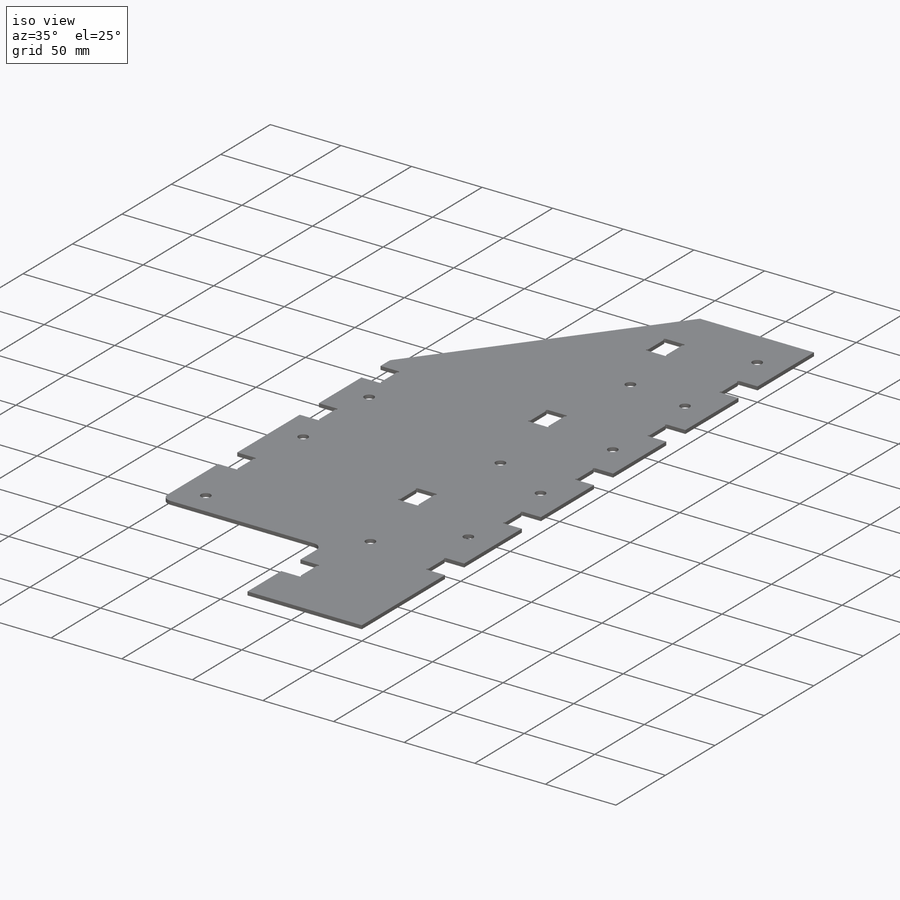
[diagram: iso view]
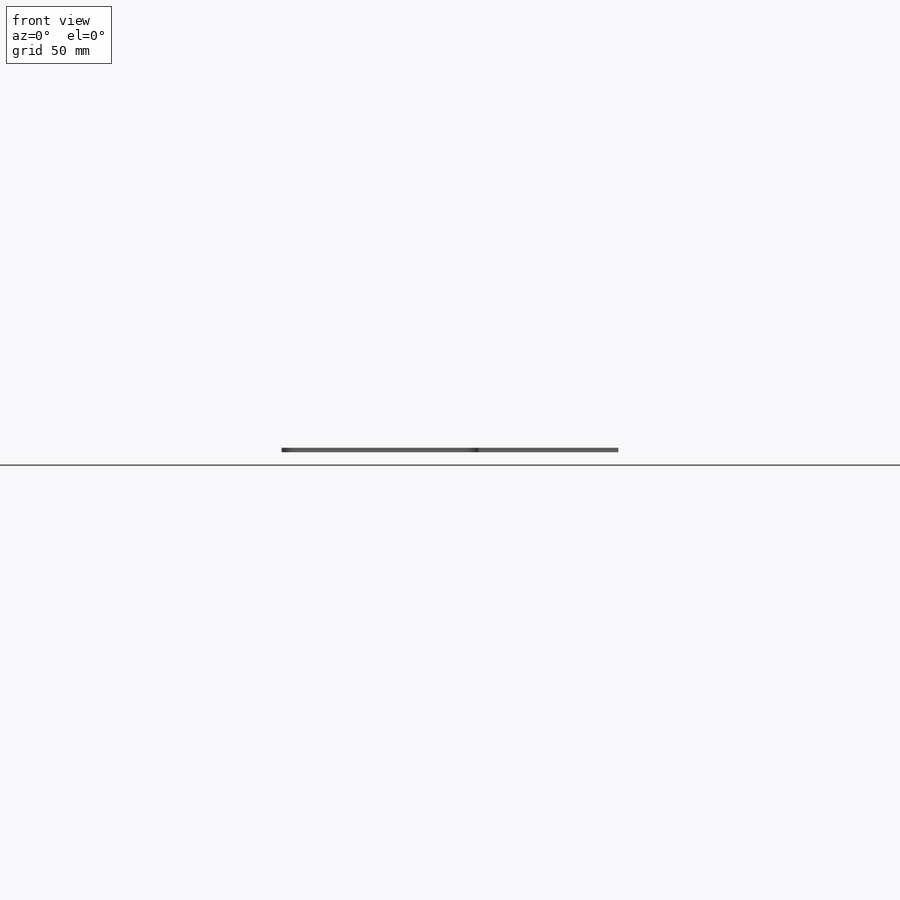
[diagram: front view]
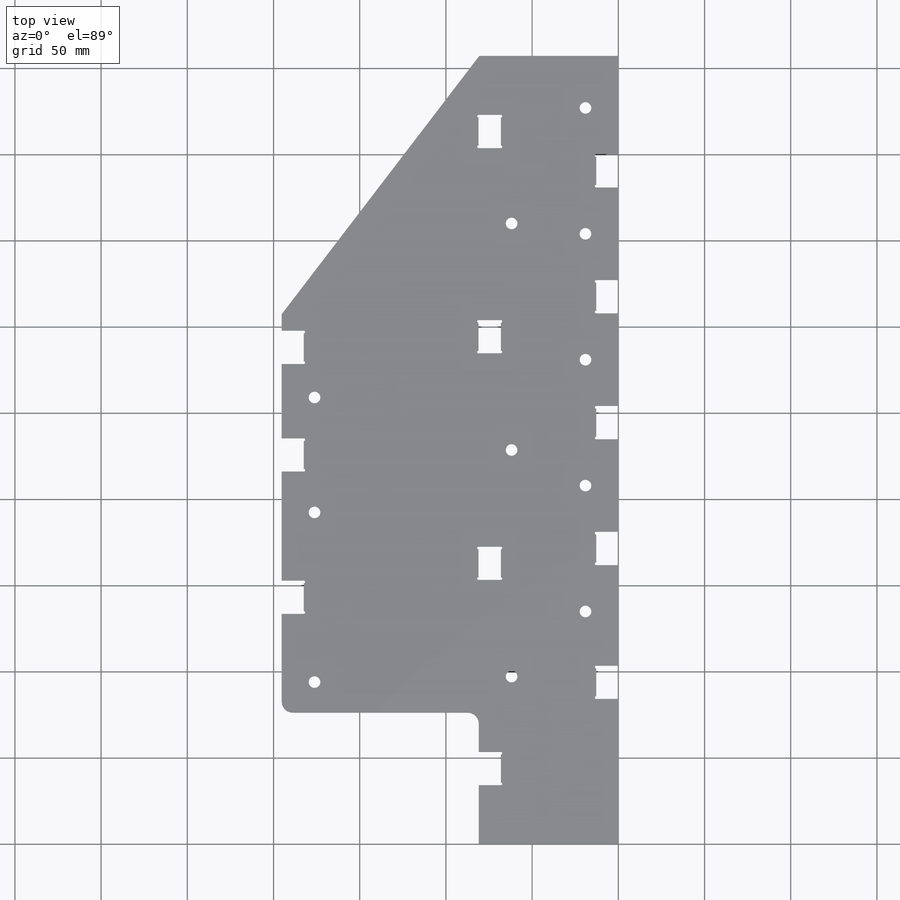
[diagram: top view]
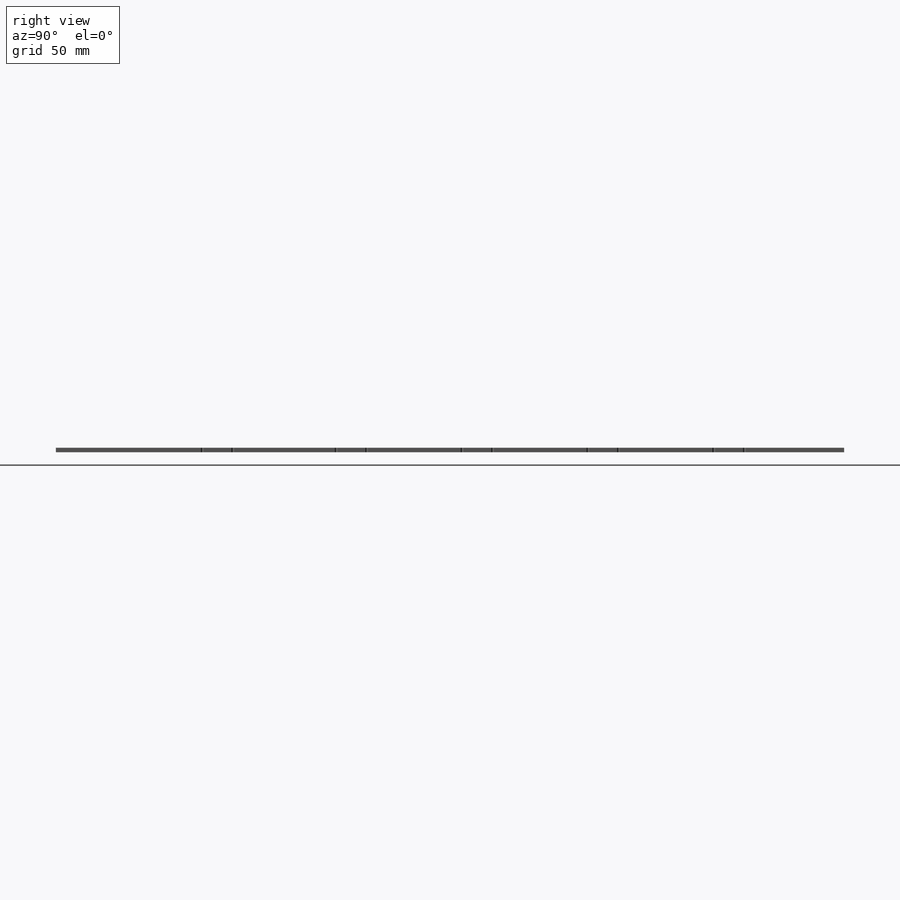
[diagram: right view]
SOLIDWORKS PART (.sldprt)
format: sldprt  version: not decoded by parser v0  size: 427,008 bytes
history: native  units: mm
features: sketch x5, cut_extrude x2, material x1, extrude x1, fillet x1, hole x1 (+13 scaffold rows collapsed)
feature tree (24):
  scaffold x13  (default folders/planes/origin — collapsed)
  material  "Ti-6Al-4VSolution treated and aged (SS)"
  sketch  "Sketch1"  dims[D1=76.2mm D2=114.3mm D3=80.9625mm D4=457.2mm D5=~231.158142mm D6=80.645mm D7=~187.956816mm]
  extrude  "Boss-Extrude1"  Depth=2.54mm
  fillet  "Fillet1"  Radius=6.35mm
  sketch  "Sketch2"  dims[c1.D1=~18.270659mm c1.D2=~5.420965mm c2.D1=19.05mm c2.D2=12.7mm c3.D1=19.05mm c3.D2=12.7mm c4.D1=19.05mm c4.D2=12.7mm c5.D1=19.05mm c5.D2=12.7mm c6.D1=19.05mm c6.D2=12.7mm c7.D1=19.05mm c7.D2=12.7mm c8.D1=19.05mm c8.D2=12.7mm c9.D1=19.05mm c9.D2=12.7mm c10.D1=19.05mm c10.D2=12.7mm c11.D1=19.05mm c11.D2=12.7mm c12.D1=19.05mm c12.D2=12.7mm c13.D1=19.05mm c13.D2=12.7mm c14.D1=0.127mm]
  cut_extrude  "Cut-Extrude1"  [1 undecoded]
  hole  "1/4 Clearance Hole1"  Diameter=6.7564mm Depth=2.54mm
  sketch  "Sketch4"
  sketch  "Sketch3"  dims[hole-wizard template sketch: 60 standard entries collapsed; hole parameters kept: c18.Thru Hole Depth=2.54mm]
  sketch  "Sketch5"  dims[D1=1.5875mm]
  cut_extrude  "Cut-Extrude2"  [1 undecoded]
decode coverage: 7 of 10 modeling features carry decoded parameters
note: ~ marks probable driven/reference dimensions
note: 2 parameter values undecoded
note: suppression state not decoded; provenance and decode notes live in map.json
